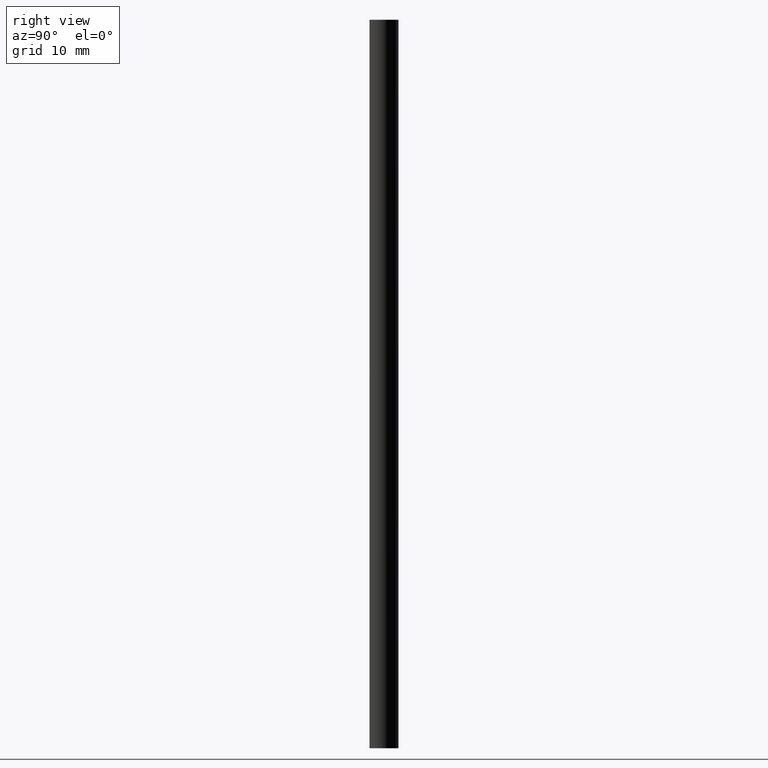
[diagram: clean part render]
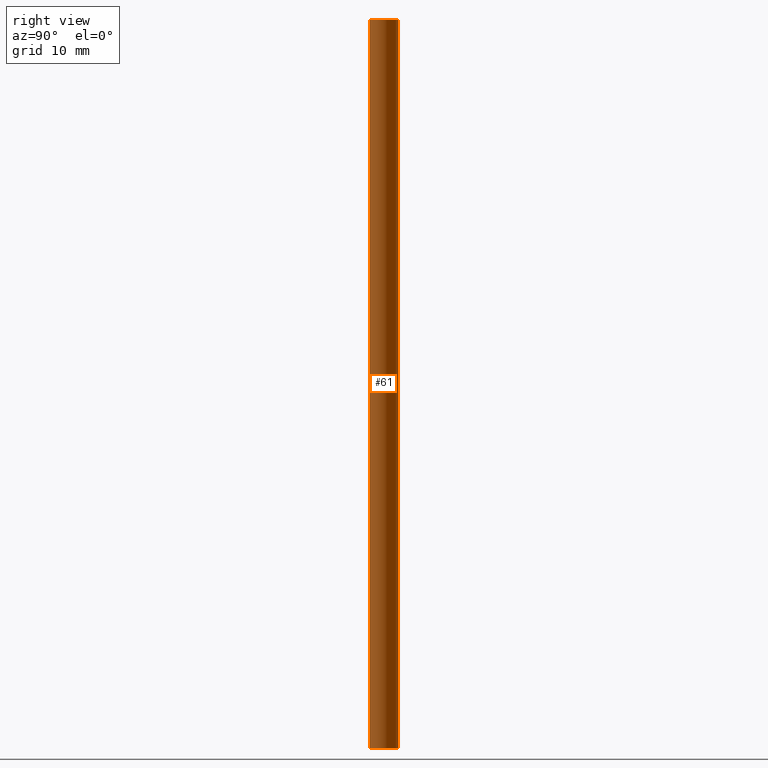
[diagram: same view with one face highlighted and labeled with its STEP entity id]
A machine part, right view. The second image highlights one B-rep face of the part: STEP entity #61.
In plain terms, the highlighted cylindrical surface (edge-blend (fillet) strip) has radius 4 mm, axis along (0, 0, 1).
Its self-contained STEP definition (entity closure, byte-faithful):
#16=CYLINDRICAL_SURFACE('',#86,4.);
#18=FACE_OUTER_BOUND('',#22,.T.);
#22=EDGE_LOOP('',(#47,#48,#49,#50));
#26=LINE('',#118,#30);
#27=LINE('',#119,#31);
#30=VECTOR('',#101,10.);
#31=VECTOR('',#102,10.);
#33=CIRCLE('',#85,4.);
#34=CIRCLE('',#87,4.);
#35=VERTEX_POINT('',#110);
#36=VERTEX_POINT('',#111);
#37=VERTEX_POINT('',#115);
#38=VERTEX_POINT('',#116);
#39=EDGE_CURVE('',#35,#36,#33,.T.);
#41=EDGE_CURVE('',#37,#38,#34,.T.);
#42=EDGE_CURVE('',#35,#38,#26,.T.);
#43=EDGE_CURVE('',#37,#36,#27,.T.);
#47=ORIENTED_EDGE('',*,*,#41,.T.);
#48=ORIENTED_EDGE('',*,*,#42,.F.);
#49=ORIENTED_EDGE('',*,*,#39,.T.);
#50=ORIENTED_EDGE('',*,*,#43,.F.);
#61=ADVANCED_FACE('',(#18),#16,.T.);
#85=AXIS2_PLACEMENT_3D('',#112,#94,#95);
#86=AXIS2_PLACEMENT_3D('',#114,#97,#98);
#87=AXIS2_PLACEMENT_3D('',#117,#99,#100);
#94=DIRECTION('center_axis',(0.,0.,1.));
#95=DIRECTION('ref_axis',(1.,0.,0.));
#97=DIRECTION('center_axis',(0.,0.,1.));
#98=DIRECTION('ref_axis',(1.,0.,0.));
#99=DIRECTION('center_axis',(0.,0.,-1.));
#100=DIRECTION('ref_axis',(1.,0.,0.));
#101=DIRECTION('',(0.,0.,1.));
#102=DIRECTION('',(0.,0.,-1.));
#110=CARTESIAN_POINT('',(4.,0.,-50.));
#111=CARTESIAN_POINT('',(-4.,0.,-50.));
#112=CARTESIAN_POINT('Origin',(0.,0.,-50.));
#114=CARTESIAN_POINT('Origin',(0.,0.,0.));
#115=CARTESIAN_POINT('',(-4.,0.,50.));
#116=CARTESIAN_POINT('',(4.,0.,50.));
#117=CARTESIAN_POINT('Origin',(0.,0.,50.));
#118=CARTESIAN_POINT('',(4.,0.,0.));
#119=CARTESIAN_POINT('',(-4.,0.,0.));